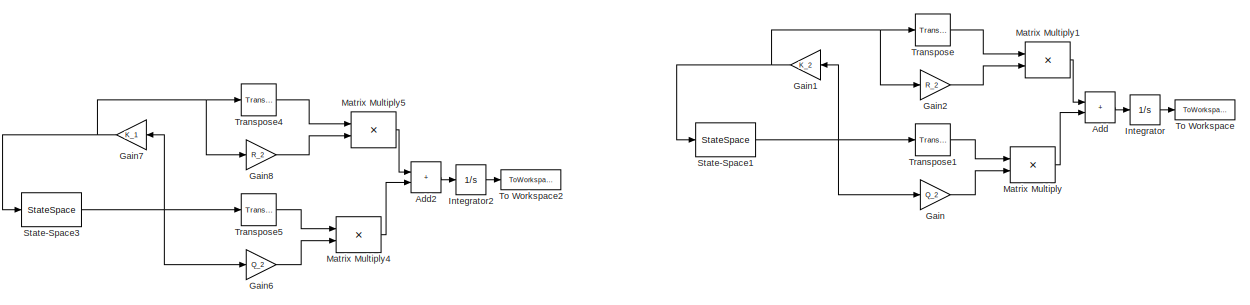
[diagram: root canvas - part 1/2, middle left region]
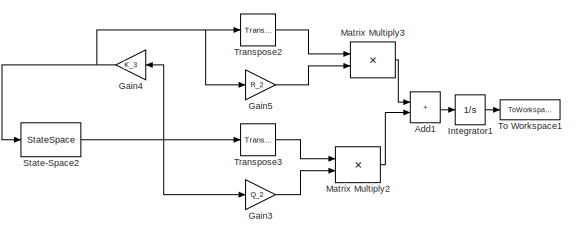
[diagram: root canvas - part 2/2, bottom right region]
MODEL slx_af0efb14265e
KIND model
CONFIG AbsTol = auto
CONFIG EnableMultiTasking = off
CONFIG FixedStep = auto
CONFIG MaxStep = auto
CONFIG MinStep = auto
CONFIG RelTol = 1e-3
CONFIG SampleTimeConstraint = Unconstrained
CONFIG SolverName = VariableStepAuto
CONFIG StartTime = 0.0
CONFIG StopTime = 100
BLOCK [Sum] Add
  IconShape = rectangular
  Ports = [2, 1]
BLOCK [Sum] Add1
  IconShape = rectangular
  Ports = [2, 1]
BLOCK [Sum] Add2
  IconShape = rectangular
  Ports = [2, 1]
BLOCK [Gain] Gain
  Gain = Q_2
  Multiplication = Matrix(K*u)
BLOCK [Gain] Gain1
  Gain = K_2
  Multiplication = Matrix(K*u) (u vector)
  NameLocation = top
BLOCK [Gain] Gain2
  Gain = R_2
  Multiplication = Matrix(K*u)
BLOCK [Gain] Gain3
  Gain = Q_2
  Multiplication = Matrix(K*u)
BLOCK [Gain] Gain4
  Gain = K_3
  Multiplication = Matrix(K*u) (u vector)
  NameLocation = top
BLOCK [Gain] Gain5
  Gain = R_2
  Multiplication = Matrix(K*u)
BLOCK [Gain] Gain6
  Gain = Q_2
  Multiplication = Matrix(K*u)
BLOCK [Gain] Gain7
  Gain = K_1
  Multiplication = Matrix(K*u) (u vector)
  NameLocation = top
BLOCK [Gain] Gain8
  Gain = R_2
  Multiplication = Matrix(K*u)
BLOCK [Integrator] Integrator
  Ports = [1, 1]
BLOCK [Integrator] Integrator1
  Ports = [1, 1]
BLOCK [Integrator] Integrator2
  Ports = [1, 1]
BLOCK [Product] Matrix Multiply
  Multiplication = Matrix(*)
  Ports = [2, 1]
BLOCK [Product] Matrix Multiply1
  Multiplication = Matrix(*)
  Ports = [2, 1]
BLOCK [Product] Matrix Multiply2
  Multiplication = Matrix(*)
  Ports = [2, 1]
BLOCK [Product] Matrix Multiply3
  Multiplication = Matrix(*)
  Ports = [2, 1]
BLOCK [Product] Matrix Multiply4
  Multiplication = Matrix(*)
  Ports = [2, 1]
BLOCK [Product] Matrix Multiply5
  Multiplication = Matrix(*)
  Ports = [2, 1]
BLOCK [StateSpace] State-Space1
  A = A
  B = B
  C = C
  D = D
  InitialCondition = x0
  ParameterTunability = Unconstrained
  Ports = [1, 1]
BLOCK [StateSpace] State-Space2
  A = A
  B = B
  C = C
  D = D
  InitialCondition = x0
  ParameterTunability = Unconstrained
  Ports = [1, 1]
BLOCK [StateSpace] State-Space3
  A = A
  B = B
  C = C
  D = D
  InitialCondition = x0
  ParameterTunability = Unconstrained
  Ports = [1, 1]
BLOCK [ToWorkspace] To Workspace
  FixptAsFi = on
  MaxDataPoints = inf
  Ports = [1]
  SampleTime = 0.0001
  SaveFormat = Timeseries
  VariableName = J_2
BLOCK [ToWorkspace] To Workspace1
  FixptAsFi = on
  MaxDataPoints = inf
  Ports = [1]
  SampleTime = 0.0001
  SaveFormat = Timeseries
  VariableName = J_3
BLOCK [ToWorkspace] To Workspace2
  FixptAsFi = on
  MaxDataPoints = inf
  Ports = [1]
  SampleTime = 0.0001
  SaveFormat = Timeseries
  VariableName = J_1
BLOCK [Reference] Transpose  REF=matrix_library/Transpose
  Ports = [1, 1]
  SourceBlock = matrix_library/Transpose
  SourceProductBaseCode = SL
  SourceType = Transpose
BLOCK [Reference] Transpose1  REF=matrix_library/Transpose
  Ports = [1, 1]
  SourceBlock = matrix_library/Transpose
  SourceProductBaseCode = SL
  SourceType = Transpose
BLOCK [Reference] Transpose2  REF=matrix_library/Transpose
  Ports = [1, 1]
  SourceBlock = matrix_library/Transpose
  SourceProductBaseCode = SL
  SourceType = Transpose
BLOCK [Reference] Transpose3  REF=matrix_library/Transpose
  Ports = [1, 1]
  SourceBlock = matrix_library/Transpose
  SourceProductBaseCode = SL
  SourceType = Transpose
BLOCK [Reference] Transpose4  REF=matrix_library/Transpose
  Ports = [1, 1]
  SourceBlock = matrix_library/Transpose
  SourceProductBaseCode = SL
  SourceType = Transpose
BLOCK [Reference] Transpose5  REF=matrix_library/Transpose
  Ports = [1, 1]
  SourceBlock = matrix_library/Transpose
  SourceProductBaseCode = SL
  SourceType = Transpose
LINE Add1:1 -> Integrator1:1
LINE Add2:1 -> Integrator2:1
LINE Add:1 -> Integrator:1
NET Gain1:1 -> Gain2:1, State-Space1:1, Transpose:1
LINE Gain2:1 -> Matrix Multiply1:2
LINE Gain3:1 -> Matrix Multiply2:2
NET Gain4:1 -> Gain5:1, State-Space2:1, Transpose2:1
LINE Gain5:1 -> Matrix Multiply3:2
LINE Gain6:1 -> Matrix Multiply4:2
NET Gain7:1 -> Gain8:1, State-Space3:1, Transpose4:1
LINE Gain8:1 -> Matrix Multiply5:2
LINE Gain:1 -> Matrix Multiply:2
LINE Integrator1:1 -> To Workspace1:1
LINE Integrator2:1 -> To Workspace2:1
LINE Integrator:1 -> To Workspace:1
LINE Matrix Multiply1:1 -> Add:1
LINE Matrix Multiply2:1 -> Add1:2
LINE Matrix Multiply3:1 -> Add1:1
LINE Matrix Multiply4:1 -> Add2:2
LINE Matrix Multiply5:1 -> Add2:1
LINE Matrix Multiply:1 -> Add:2
NET State-Space1:1 -> Gain1:1, Gain:1, Transpose1:1
NET State-Space2:1 -> Gain3:1, Gain4:1, Transpose3:1
NET State-Space3:1 -> Gain6:1, Gain7:1, Transpose5:1
LINE Transpose1:1 -> Matrix Multiply:1
LINE Transpose2:1 -> Matrix Multiply3:1
LINE Transpose3:1 -> Matrix Multiply2:1
LINE Transpose4:1 -> Matrix Multiply5:1
LINE Transpose5:1 -> Matrix Multiply4:1
LINE Transpose:1 -> Matrix Multiply1:1
note: NET lines group one-source signal fan-out (src -> all destinations, sorted); 1:1 wires keep LINE
